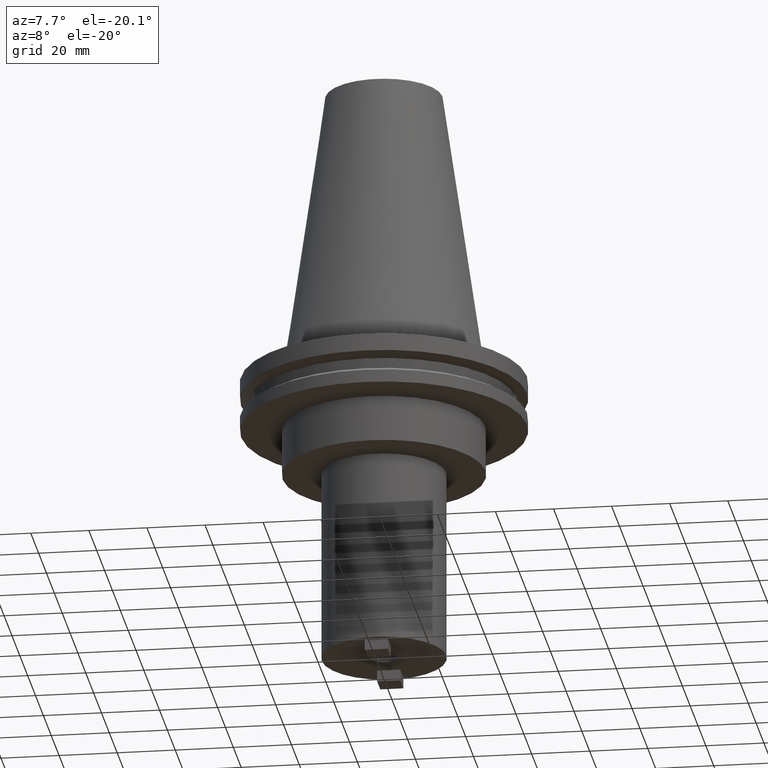
[diagram: clean part render]
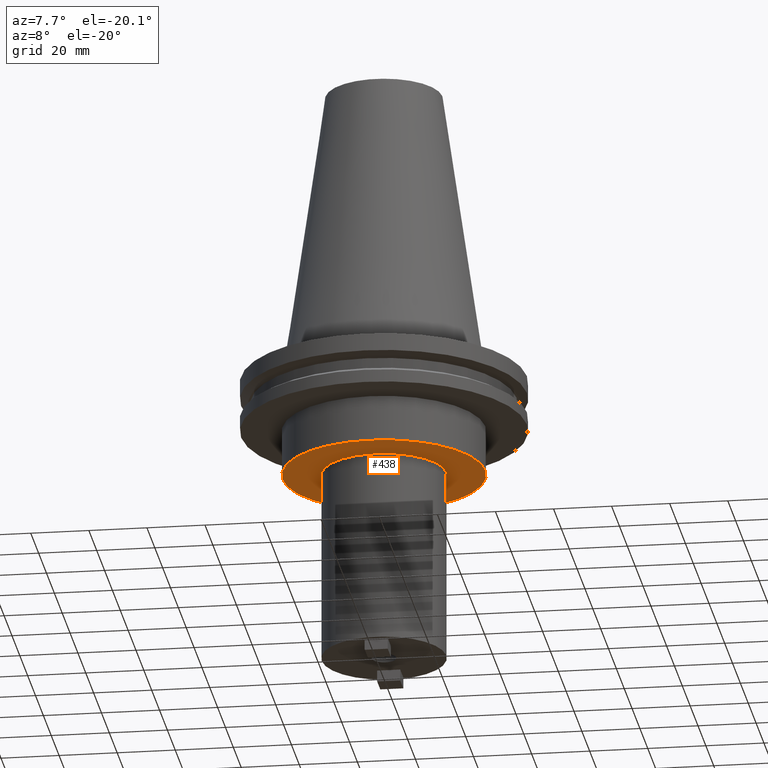
[diagram: same view with one face highlighted and labeled with its STEP entity id]
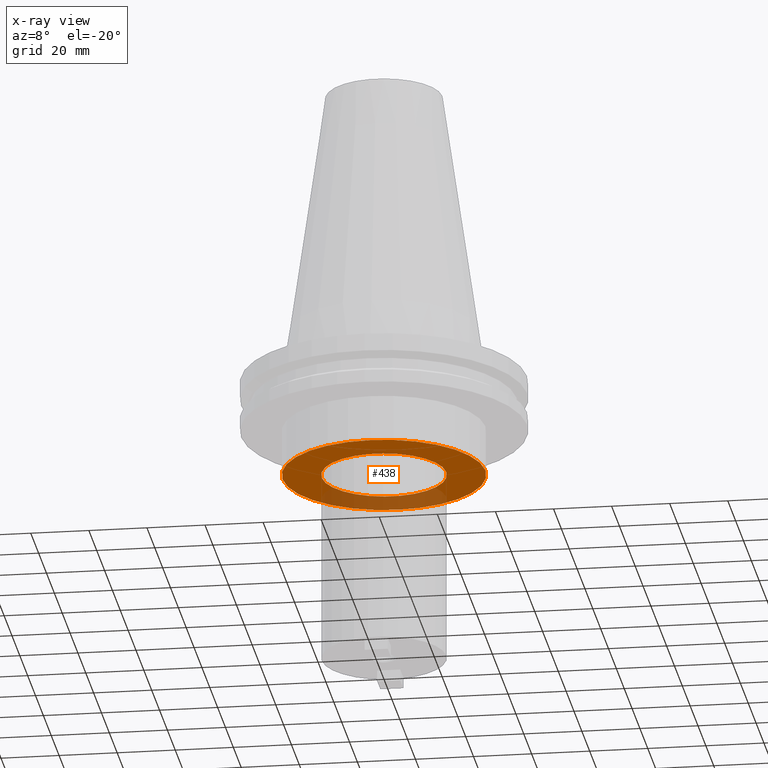
[diagram: x-ray of the same camera — body ghosted, the highlighted face saturated]
A machine part, auxiliary view. The second image highlights one B-rep face of the part: STEP entity #438.
The next image is the same camera in x-ray: the body ghosted, the highlighted face saturated — about 26% of this face is hidden behind the body in this view.
In plain terms, the highlighted planar face has unit normal (0, -0, 1).
Its self-contained STEP definition (entity closure, byte-faithful):
#56 = CIRCLE ( 'NONE', #676, 21.45029999999999859 ) ;
#58 = CARTESIAN_POINT ( 'NONE',  ( 0.000000000000000000, 0.000000000000000000, -35.04999999999999716 ) ) ;
#93 = CIRCLE ( 'NONE', #302, 34.92499999999999716 ) ;
#156 = DIRECTION ( 'NONE',  ( -0.000000000000000000, -0.000000000000000000, 1.000000000000000000 ) ) ;
#172 = ORIENTED_EDGE ( 'NONE', *, *, #224, .T. ) ;
#212 = DIRECTION ( 'NONE',  ( 1.000000000000000000, 0.000000000000000000, 0.000000000000000000 ) ) ;
#224 = EDGE_CURVE ( 'NONE', #1015, #471, #601, .T. ) ;
#245 = AXIS2_PLACEMENT_3D ( 'NONE', #367, #295, #212 ) ;
#251 = DIRECTION ( 'NONE',  ( -0.000000000000000000, -0.000000000000000000, 1.000000000000000000 ) ) ;
#286 = PLANE ( 'NONE',  #340 ) ;
#295 = DIRECTION ( 'NONE',  ( -0.000000000000000000, -0.000000000000000000, 1.000000000000000000 ) ) ;
#301 = ORIENTED_EDGE ( 'NONE', *, *, #671, .F. ) ;
#302 = AXIS2_PLACEMENT_3D ( 'NONE', #1084, #251, #583 ) ;
#340 = AXIS2_PLACEMENT_3D ( 'NONE', #544, #875, #551 ) ;
#367 = CARTESIAN_POINT ( 'NONE',  ( 0.000000000000000000, 0.000000000000000000, -35.04999999999999716 ) ) ;
#390 = CARTESIAN_POINT ( 'NONE',  ( -34.92499999999999716, 4.277078946022130887E-15, -35.04999999999999716 ) ) ;
#412 = DIRECTION ( 'NONE',  ( 1.000000000000000000, 0.000000000000000000, 0.000000000000000000 ) ) ;
#438 = ADVANCED_FACE ( 'NONE', ( #1045, #964 ), #286, .F. ) ;
#470 = CARTESIAN_POINT ( 'NONE',  ( 21.45029999999999859, 0.000000000000000000, -35.04999999999999716 ) ) ;
#471 = VERTEX_POINT ( 'NONE', #470 ) ;
#476 = VERTEX_POINT ( 'NONE', #390 ) ;
#537 = EDGE_LOOP ( 'NONE', ( #556, #301 ) ) ;
#544 = CARTESIAN_POINT ( 'NONE',  ( 0.000000000000000000, 34.92499999999999716, -35.04999999999999716 ) ) ;
#551 = DIRECTION ( 'NONE',  ( 1.000000000000000000, 0.000000000000000000, 0.000000000000000000 ) ) ;
#556 = ORIENTED_EDGE ( 'NONE', *, *, #865, .F. ) ;
#561 = CARTESIAN_POINT ( 'NONE',  ( 34.92499999999999716, 0.000000000000000000, -35.04999999999999716 ) ) ;
#583 = DIRECTION ( 'NONE',  ( 1.000000000000000000, 0.000000000000000000, 0.000000000000000000 ) ) ;
#601 = CIRCLE ( 'NONE', #245, 21.45029999999999859 ) ;
#640 = DIRECTION ( 'NONE',  ( -0.000000000000000000, -0.000000000000000000, 1.000000000000000000 ) ) ;
#671 = EDGE_CURVE ( 'NONE', #476, #809, #946, .T. ) ;
#676 = AXIS2_PLACEMENT_3D ( 'NONE', #58, #640, #968 ) ;
#699 = CARTESIAN_POINT ( 'NONE',  ( 0.000000000000000000, 0.000000000000000000, -35.04999999999999716 ) ) ;
#795 = AXIS2_PLACEMENT_3D ( 'NONE', #699, #156, #412 ) ;
#809 = VERTEX_POINT ( 'NONE', #561 ) ;
#825 = EDGE_CURVE ( 'NONE', #471, #1015, #56, .T. ) ;
#847 = ORIENTED_EDGE ( 'NONE', *, *, #825, .T. ) ;
#865 = EDGE_CURVE ( 'NONE', #809, #476, #93, .T. ) ;
#875 = DIRECTION ( 'NONE',  ( 0.000000000000000000, -0.000000000000000000, 1.000000000000000000 ) ) ;
#938 = CARTESIAN_POINT ( 'NONE',  ( -21.45029999999999859, 2.626904123575046818E-15, -35.04999999999999716 ) ) ;
#946 = CIRCLE ( 'NONE', #795, 34.92499999999999716 ) ;
#964 = FACE_OUTER_BOUND ( 'NONE', #537, .T. ) ;
#968 = DIRECTION ( 'NONE',  ( 1.000000000000000000, 0.000000000000000000, 0.000000000000000000 ) ) ;
#988 = EDGE_LOOP ( 'NONE', ( #847, #172 ) ) ;
#1015 = VERTEX_POINT ( 'NONE', #938 ) ;
#1045 = FACE_BOUND ( 'NONE', #988, .T. ) ;
#1084 = CARTESIAN_POINT ( 'NONE',  ( 0.000000000000000000, 0.000000000000000000, -35.04999999999999716 ) ) ;